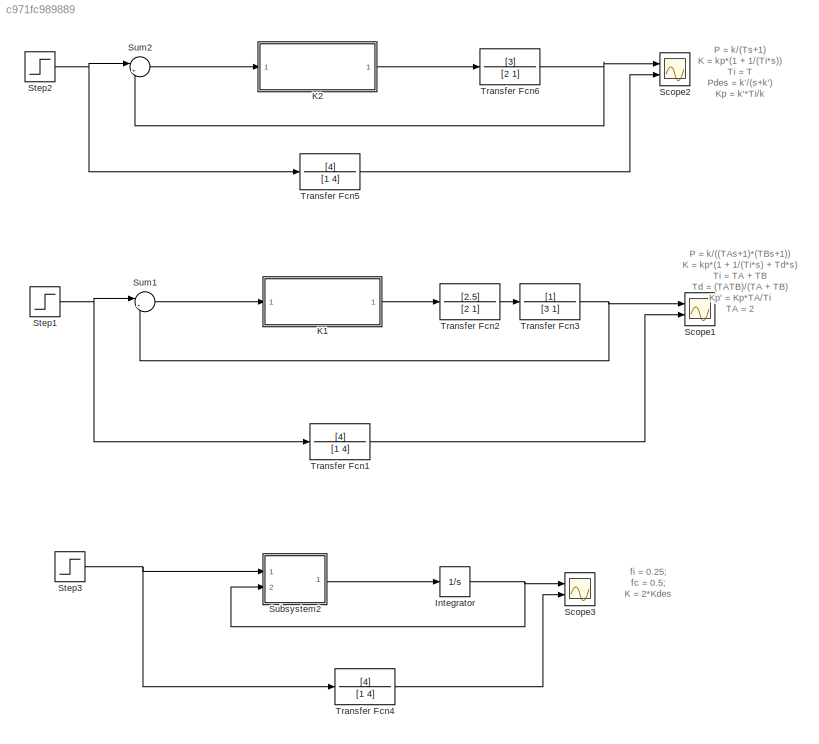
MODEL slx_c971fc989889
KIND model
CONFIG AbsTol = auto
CONFIG EnableMultiTasking = off
CONFIG FixedStep = 0.001
CONFIG MaxStep = auto
CONFIG MinStep = auto
CONFIG RelTol = 1e-3
CONFIG SampleTimeConstraint = Unconstrained
CONFIG Solver = ode1
CONFIG SolverName = ode1
CONFIG StartTime = 0.0
CONFIG StopTime = 10
BLOCK [Integrator] Integrator
  Ports = [1, 1]
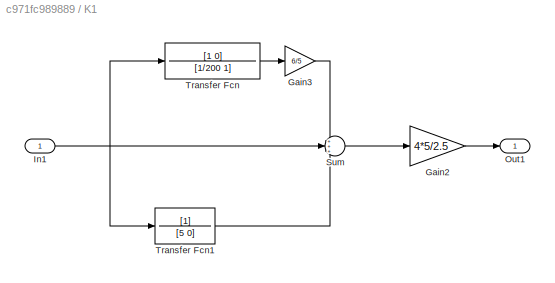
BLOCK [SubSystem] K1
  Ports = [1, 1]
  RequestExecContextInheritance = off
BLOCK [Gain] K1/Gain2
  Gain = 4*5/2.5
  OutDataTypeStr = Inherit: Inherit via internal rule
  ParamDataTypeStr = Inherit: Inherit via internal rule
  SaturateOnIntegerOverflow = off
BLOCK [Gain] K1/Gain3
  Gain = 6/5
  OutDataTypeStr = Inherit: Inherit via internal rule
  ParamDataTypeStr = Inherit: Inherit via internal rule
  SaturateOnIntegerOverflow = off
BLOCK [Inport] K1/In1
  IconDisplay = Port number
BLOCK [Outport] K1/Out1
  IconDisplay = Port number
BLOCK [Sum] K1/Sum
  IconShape = round
  InputSameDT = off
  Inputs = +++
  OutDataTypeStr = Inherit: Inherit via internal rule
  Ports = [3, 1]
  SaturateOnIntegerOverflow = off
BLOCK [TransferFcn] K1/Transfer Fcn
  Denominator = [1/200 1]
  Numerator = [1 0]
BLOCK [TransferFcn] K1/Transfer Fcn1
  Denominator = [5 0]
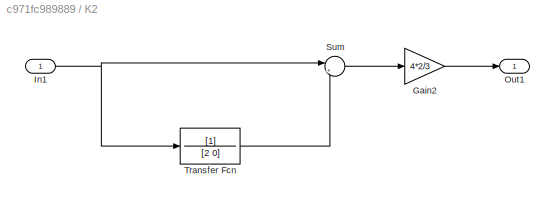
BLOCK [SubSystem] K2
  Ports = [1, 1]
  RequestExecContextInheritance = off
BLOCK [Gain] K2/Gain2
  Gain = 4*2/3
  OutDataTypeStr = Inherit: Inherit via internal rule
  ParamDataTypeStr = Inherit: Inherit via internal rule
  SaturateOnIntegerOverflow = off
BLOCK [Inport] K2/In1
  IconDisplay = Port number
BLOCK [Outport] K2/Out1
  IconDisplay = Port number
BLOCK [Sum] K2/Sum
  IconShape = round
  InputSameDT = off
  Inputs = |++
  OutDataTypeStr = Inherit: Inherit via internal rule
  Ports = [2, 1]
  SaturateOnIntegerOverflow = off
BLOCK [TransferFcn] K2/Transfer Fcn
  Denominator = [2 0]
BLOCK [Scope] Scope1
  Floating = off
  NumInputPorts = 2
  Ports = [2]
  ScopeSpecificationString = Simulink.scopes.TimeScopeBlockCfg('CurrentConfiguration', extmgr.ConfigurationSet(extmgr.Configuration('Core','General UI',true),extmgr.Configuration('Core','Source UI',true),extmgr.Configuration('Sources','WiredSimulink',true,'DataLoggingVariableName','ScopeData1'),extmgr.Configuration('Visuals','Time Domain',true,'SerializedDisplays',{struct('MinYLimReal','-0.12501','MaxYLimReal','1.12505','YLab...<+1462ch>
BLOCK [Scope] Scope2
  Floating = off
  NumInputPorts = 2
  Ports = [2]
  ScopeSpecificationString = Simulink.scopes.TimeScopeBlockCfg('CurrentConfiguration', extmgr.ConfigurationSet(extmgr.Configuration('Core','General UI',true),extmgr.Configuration('Core','Source UI',true),extmgr.Configuration('Sources','WiredSimulink',true,'DataLoggingVariableName','ScopeData2'),extmgr.Configuration('Visuals','Time Domain',true,'SerializedDisplays',{struct('MinYLimReal','-0.125','MaxYLimReal','1.125','YLabelRe...<+1431ch>
BLOCK [Scope] Scope3
  Floating = off
  NumInputPorts = 2
  Ports = [2]
  ScopeSpecificationString = Simulink.scopes.TimeScopeBlockCfg('CurrentConfiguration', extmgr.ConfigurationSet(extmgr.Configuration('Core','General UI',true),extmgr.Configuration('Core','Source UI',true),extmgr.Configuration('Sources','WiredSimulink',true),extmgr.Configuration('Visuals','Time Domain',true,'SerializedDisplays',{struct('MinYLimReal','-0.12501','MaxYLimReal','1.12505','YLabelReal','','MinYLimMag','0.00000','MaxY...<+1394ch>
BLOCK [Step] Step1
  SampleTime = 0
BLOCK [Step] Step2
  SampleTime = 0
BLOCK [Step] Step3
  SampleTime = 0
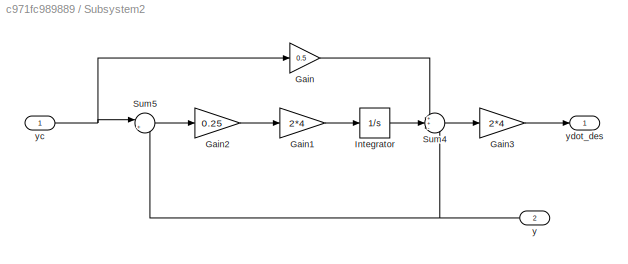
BLOCK [SubSystem] Subsystem2
  Ports = [2, 1]
  RequestExecContextInheritance = off
BLOCK [Gain] Subsystem2/Gain
  Gain = 0.5
  OutDataTypeStr = Inherit: Inherit via internal rule
  ParamDataTypeStr = Inherit: Inherit via internal rule
  SaturateOnIntegerOverflow = off
BLOCK [Gain] Subsystem2/Gain1
  Gain = 2*4
  OutDataTypeStr = Inherit: Inherit via internal rule
  ParamDataTypeStr = Inherit: Inherit via internal rule
  SaturateOnIntegerOverflow = off
BLOCK [Gain] Subsystem2/Gain2
  Gain = 0.25
  OutDataTypeStr = Inherit: Inherit via internal rule
  ParamDataTypeStr = Inherit: Inherit via internal rule
  SaturateOnIntegerOverflow = off
BLOCK [Gain] Subsystem2/Gain3
  Gain = 2*4
  OutDataTypeStr = Inherit: Inherit via internal rule
  ParamDataTypeStr = Inherit: Inherit via internal rule
  SaturateOnIntegerOverflow = off
BLOCK [Integrator] Subsystem2/Integrator
  Ports = [1, 1]
BLOCK [Sum] Subsystem2/Sum4
  IconShape = round
  InputSameDT = off
  Inputs = ++-
  OutDataTypeStr = Inherit: Inherit via internal rule
  Ports = [3, 1]
  SaturateOnIntegerOverflow = off
BLOCK [Sum] Subsystem2/Sum5
  IconShape = round
  InputSameDT = off
  Inputs = |+-
  OutDataTypeStr = Inherit: Inherit via internal rule
  Ports = [2, 1]
  SaturateOnIntegerOverflow = off
BLOCK [Inport] Subsystem2/y
  IconDisplay = Port number
  Port = 2
BLOCK [Inport] Subsystem2/yc
  IconDisplay = Port number
BLOCK [Outport] Subsystem2/ydot_des
  IconDisplay = Port number
  VectorParamsAs1DForOutWhenUnconnected = off
BLOCK [Sum] Sum1
  IconShape = round
  InputSameDT = off
  Inputs = |+-
  OutDataTypeStr = Inherit: Inherit via internal rule
  Ports = [2, 1]
  SaturateOnIntegerOverflow = off
BLOCK [Sum] Sum2
  IconShape = round
  InputSameDT = off
  Inputs = |+-
  OutDataTypeStr = Inherit: Inherit via internal rule
  Ports = [2, 1]
  SaturateOnIntegerOverflow = off
BLOCK [TransferFcn] Transfer Fcn1
  Denominator = [1 4]
  Numerator = [4]
BLOCK [TransferFcn] Transfer Fcn2
  Denominator = [2 1]
  Numerator = [2.5]
BLOCK [TransferFcn] Transfer Fcn3
  Denominator = [3 1]
BLOCK [TransferFcn] Transfer Fcn4
  Denominator = [1 4]
  Numerator = [4]
BLOCK [TransferFcn] Transfer Fcn5
  Denominator = [1 4]
  Numerator = [4]
BLOCK [TransferFcn] Transfer Fcn6
  Denominator = [2 1]
  Numerator = [3]
ANNOTATION (root): P = k/((TAs+1)*(TBs+1)) K = kp*(1 + 1/(Ti*s) + Td*s) Ti = TA + TB Td = (TATB)/(TA + TB) Kp' = Kp*TA/Ti TA = 2 TB = 3 Ti = 5 Td = (2*3)/(2+3) = 6/5 Pdes = k'/(s+k') Kp = k*Ti/k
ANNOTATION (root): P = k/(Ts+1) K = kp*(1 + 1/(Ti*s)) Ti = T Pdes = k'/(s+k') Kp = k'*Ti/k
ANNOTATION (root): fi = 0.25; fc = 0.5; K = 2*Kdes
NET Integrator:1 -> Scope3:1, Subsystem2:2
LINE K1/Gain2:1 -> K1/Out1:1
LINE K1/Gain3:1 -> K1/Sum:1
NET K1/In1:1 -> K1/Sum:2, K1/Transfer Fcn1:1, K1/Transfer Fcn:1
LINE K1/Sum:1 -> K1/Gain2:1
LINE K1/Transfer Fcn1:1 -> K1/Sum:3
LINE K1/Transfer Fcn:1 -> K1/Gain3:1
LINE K1:1 -> Transfer Fcn2:1
LINE K2/Gain2:1 -> K2/Out1:1
NET K2/In1:1 -> K2/Sum:1, K2/Transfer Fcn:1
LINE K2/Sum:1 -> K2/Gain2:1
LINE K2/Transfer Fcn:1 -> K2/Sum:2
LINE K2:1 -> Transfer Fcn6:1
NET Step1:1 -> Sum1:1, Transfer Fcn1:1
NET Step2:1 -> Sum2:1, Transfer Fcn5:1
NET Step3:1 -> Subsystem2:1, Transfer Fcn4:1
LINE Subsystem2/Gain1:1 -> Subsystem2/Integrator:1
LINE Subsystem2/Gain2:1 -> Subsystem2/Gain1:1
LINE Subsystem2/Gain3:1 -> Subsystem2/ydot_des:1
LINE Subsystem2/Gain:1 -> Subsystem2/Sum4:1
LINE Subsystem2/Integrator:1 -> Subsystem2/Sum4:2
LINE Subsystem2/Sum4:1 -> Subsystem2/Gain3:1
LINE Subsystem2/Sum5:1 -> Subsystem2/Gain2:1
NET Subsystem2/y:1 -> Subsystem2/Sum4:3, Subsystem2/Sum5:2
NET Subsystem2/yc:1 -> Subsystem2/Gain:1, Subsystem2/Sum5:1
LINE Subsystem2:1 -> Integrator:1
LINE Sum1:1 -> K1:1
LINE Sum2:1 -> K2:1
LINE Transfer Fcn1:1 -> Scope1:2
LINE Transfer Fcn2:1 -> Transfer Fcn3:1
NET Transfer Fcn3:1 -> Scope1:1, Sum1:2
LINE Transfer Fcn4:1 -> Scope3:2
LINE Transfer Fcn5:1 -> Scope2:2
NET Transfer Fcn6:1 -> Scope2:1, Sum2:2
note: NET lines group one-source signal fan-out (src -> all destinations, sorted); 1:1 wires keep LINE
